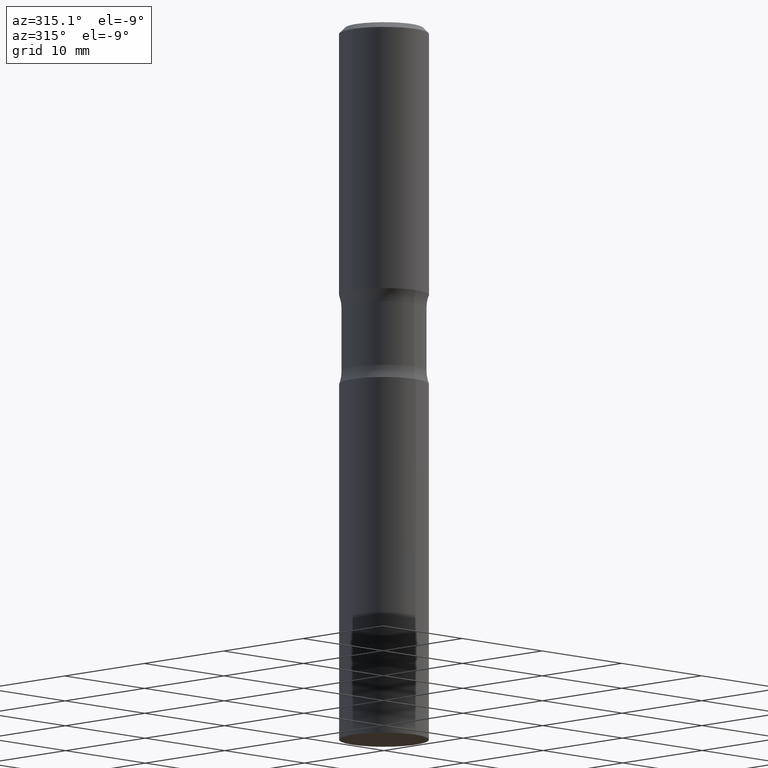
[diagram: clean part render]
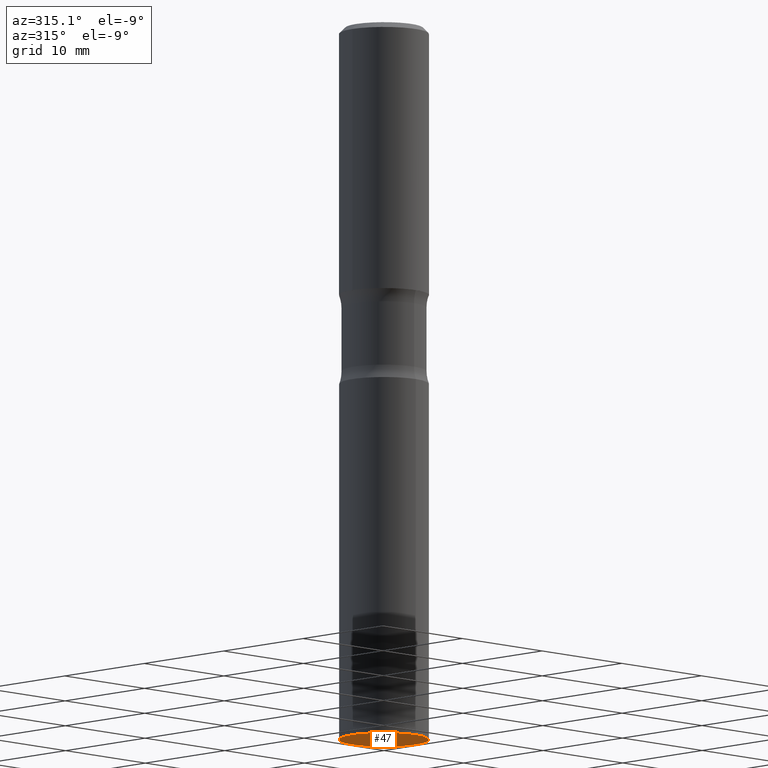
[diagram: same view with one face highlighted and labeled with its STEP entity id]
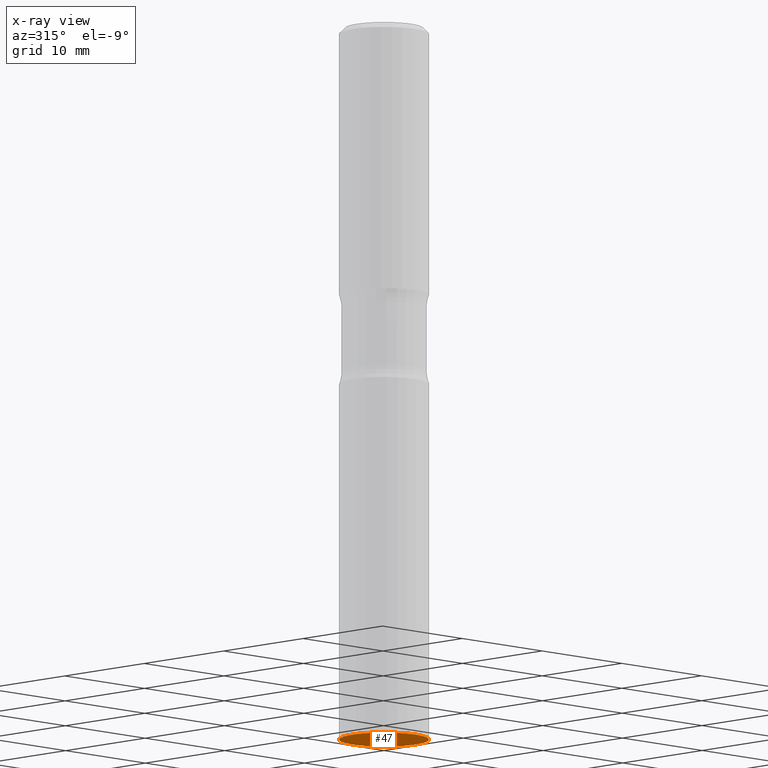
[diagram: x-ray of the same camera — body ghosted, the highlighted face saturated]
A machine part, auxiliary view. The second image highlights one B-rep face of the part: STEP entity #47.
The next image is the same camera in x-ray: the body ghosted, the highlighted face saturated — about 0% of this face is hidden behind the body in this view.
In plain terms, the highlighted planar face has unit normal (0, -0, -1).
Its self-contained STEP definition (entity closure, byte-faithful):
#17 = CARTESIAN_POINT ( 'NONE',  ( -1.099816621735525160E-15, -0.1575000000000087996, -2.519699999999999385 ) ) ;
#19 = AXIS2_PLACEMENT_3D ( 'NONE', #386, #438, #87 ) ;
#47 = ADVANCED_FACE ( 'NONE', ( #48 ), #50, .T. ) ;
#48 = FACE_OUTER_BOUND ( 'NONE', #347, .T. ) ;
#50 = PLANE ( 'NONE',  #19 ) ;
#51 = DIRECTION ( 'NONE',  ( -6.982962677686264344E-15, -1.000000000000000000, 3.469013325287953293E-15 ) ) ;
#87 = DIRECTION ( 'NONE',  ( 6.982962677686265922E-15, 1.000000000000000000, -3.494808949473645455E-15 ) ) ;
#96 = CARTESIAN_POINT ( 'NONE',  ( 6.155992829670773666E-29, -8.805870109988744166E-15, -2.519699999999999829 ) ) ;
#104 = DIRECTION ( 'NONE',  ( -6.982962677686264344E-15, -1.000000000000000000, 3.469013325287953293E-15 ) ) ;
#210 = AXIS2_PLACEMENT_3D ( 'NONE', #229, #390, #51 ) ;
#220 = VERTEX_POINT ( 'NONE', #237 ) ;
#222 = ORIENTED_EDGE ( 'NONE', *, *, #432, .F. ) ;
#229 = CARTESIAN_POINT ( 'NONE',  ( 6.155992829670773666E-29, -8.805870109988744166E-15, -2.519699999999999829 ) ) ;
#237 = CARTESIAN_POINT ( 'NONE',  ( 1.119104808822203752E-15, 0.1574999999999911748, -2.519700000000000273 ) ) ;
#286 = CIRCLE ( 'NONE', #210, 0.1575000000000000011 ) ;
#334 = DIRECTION ( 'NONE',  ( -2.443145148101271508E-29, 3.494808949473645455E-15, 1.000000000000000000 ) ) ;
#347 = EDGE_LOOP ( 'NONE', ( #377, #222 ) ) ;
#377 = ORIENTED_EDGE ( 'NONE', *, *, #468, .F. ) ;
#384 = CIRCLE ( 'NONE', #395, 0.1575000000000000011 ) ;
#386 = CARTESIAN_POINT ( 'NONE',  ( 6.161847750944688229E-29, -8.797485529483074550E-15, -2.519699999999999829 ) ) ;
#390 = DIRECTION ( 'NONE',  ( -2.443145148101271508E-29, 3.494808949473645455E-15, 1.000000000000000000 ) ) ;
#395 = AXIS2_PLACEMENT_3D ( 'NONE', #96, #334, #104 ) ;
#432 = EDGE_CURVE ( 'NONE', #220, #467, #286, .T. ) ;
#438 = DIRECTION ( 'NONE',  ( 2.443145148101270947E-29, -3.494808949473645455E-15, -1.000000000000000000 ) ) ;
#467 = VERTEX_POINT ( 'NONE', #17 ) ;
#468 = EDGE_CURVE ( 'NONE', #467, #220, #384, .T. ) ;